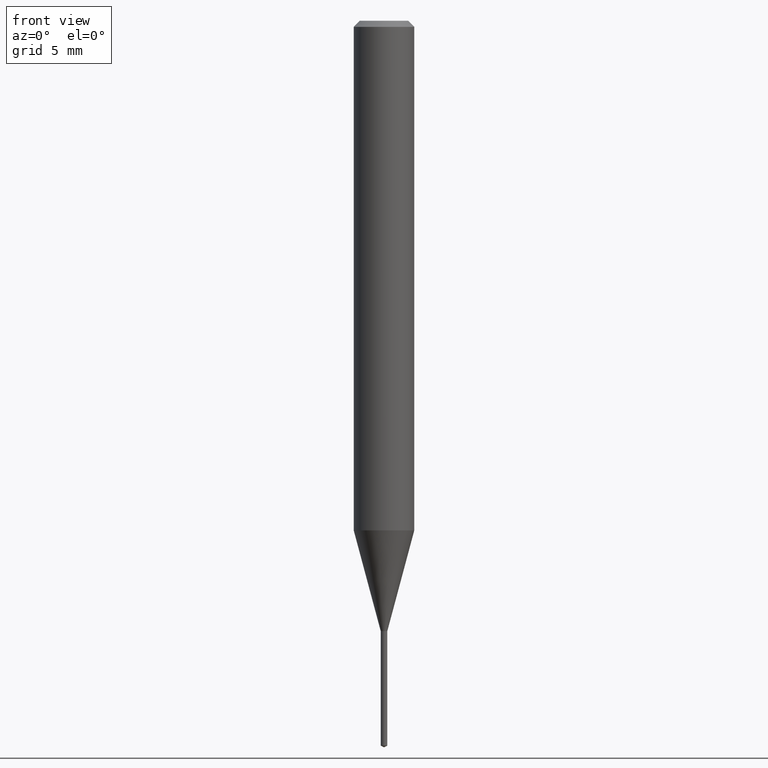
[diagram: clean part render]
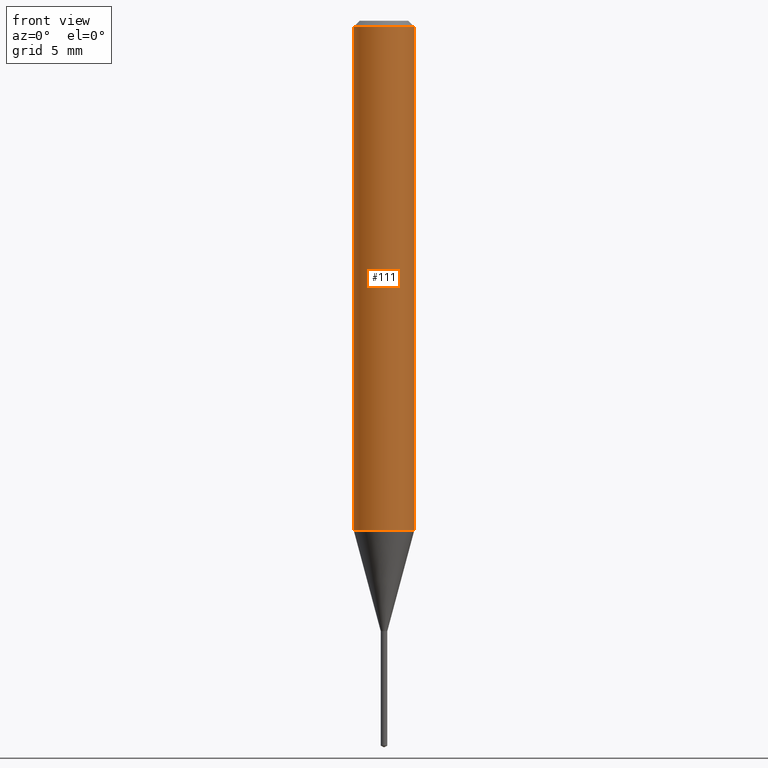
[diagram: same view with one face highlighted and labeled with its STEP entity id]
A machine part, front view. The second image highlights one B-rep face of the part: STEP entity #111.
In plain terms, the highlighted cylindrical surface (edge-blend (fillet) strip) has radius 1.5875 mm, axis along (-0, 0, 1).
Its self-contained STEP definition (entity closure, byte-faithful):
#5 = CARTESIAN_POINT ( 'NONE',  ( 2.573460162125579230E-29, -3.674219073901972026E-15, -1.052338167478040765 ) ) ;
#20 = VERTEX_POINT ( 'NONE', #104 ) ;
#38 = VERTEX_POINT ( 'NONE', #49 ) ;
#43 = CIRCLE ( 'NONE', #353, 0.06250000000000013878 ) ;
#44 = CARTESIAN_POINT ( 'NONE',  ( 0.000000000000000000, 0.000000000000000000, 0.000000000000000000 ) ) ;
#47 = EDGE_CURVE ( 'NONE', #175, #38, #115, .T. ) ;
#49 = CARTESIAN_POINT ( 'NONE',  ( 0.06250000000000000000, -4.800786840909313294E-16, -0.01250000000000008396 ) ) ;
#104 = CARTESIAN_POINT ( 'NONE',  ( -0.06250000000000013878, -3.230129864051909015E-15, -1.052338167478040765 ) ) ;
#111 = ADVANCED_FACE ( 'NONE', ( #227 ), #386, .T. ) ;
#115 = LINE ( 'NONE', #423, #208 ) ;
#151 = DIRECTION ( 'NONE',  ( 1.000000000000000000, -6.982962677686262766E-15, 0.000000000000000000 ) ) ;
#154 = AXIS2_PLACEMENT_3D ( 'NONE', #44, #388, #458 ) ;
#160 = DIRECTION ( 'NONE',  ( -2.445468806185136597E-29, 3.491481338843145583E-15, 1.000000000000000000 ) ) ;
#162 = EDGE_CURVE ( 'NONE', #20, #301, #454, .T. ) ;
#168 = CIRCLE ( 'NONE', #338, 0.06250000000000000000 ) ;
#175 = VERTEX_POINT ( 'NONE', #310 ) ;
#187 = ORIENTED_EDGE ( 'NONE', *, *, #162, .F. ) ;
#208 = VECTOR ( 'NONE', #463, 39.37007874015748143 ) ;
#216 = EDGE_CURVE ( 'NONE', #301, #38, #168, .T. ) ;
#227 = FACE_OUTER_BOUND ( 'NONE', #258, .T. ) ;
#244 = CARTESIAN_POINT ( 'NONE',  ( -0.06250000000000000000, -1.414842085468692191E-15, -0.01250000000000008396 ) ) ;
#258 = EDGE_LOOP ( 'NONE', ( #187, #261, #299, #481 ) ) ;
#261 = ORIENTED_EDGE ( 'NONE', *, *, #450, .T. ) ;
#299 = ORIENTED_EDGE ( 'NONE', *, *, #47, .T. ) ;
#301 = VERTEX_POINT ( 'NONE', #244 ) ;
#306 = DIRECTION ( 'NONE',  ( -2.445468806185136877E-29, 3.491481338843145188E-15, 1.000000000000000000 ) ) ;
#310 = CARTESIAN_POINT ( 'NONE',  ( 0.06250000000000013878, -4.110654241257365273E-15, -1.052338167478040765 ) ) ;
#319 = VECTOR ( 'NONE', #306, 39.37007874015748143 ) ;
#326 = DIRECTION ( 'NONE',  ( 1.000000000000000000, -6.982962677686266711E-15, 0.000000000000000000 ) ) ;
#338 = AXIS2_PLACEMENT_3D ( 'NONE', #399, #474, #326 ) ;
#343 = CARTESIAN_POINT ( 'NONE',  ( -0.06250000000000006939, 4.440892098500631092E-16, -3.074334431409319267E-30 ) ) ;
#353 = AXIS2_PLACEMENT_3D ( 'NONE', #5, #160, #151 ) ;
#386 = CYLINDRICAL_SURFACE ( 'NONE', #154, 0.06250000000000006939 ) ;
#388 = DIRECTION ( 'NONE',  ( -2.445468806185136597E-29, 3.491481338843145583E-15, 1.000000000000000000 ) ) ;
#399 = CARTESIAN_POINT ( 'NONE',  ( 3.056836007731441415E-31, -4.364351673553961684E-17, -0.01250000000000008396 ) ) ;
#423 = CARTESIAN_POINT ( 'NONE',  ( 0.06250000000000006939, -4.364351673553921624E-16, 3.047610484872463374E-30 ) ) ;
#450 = EDGE_CURVE ( 'NONE', #20, #175, #43, .T. ) ;
#454 = LINE ( 'NONE', #343, #319 ) ;
#458 = DIRECTION ( 'NONE',  ( 1.000000000000000000, -6.982962677686266711E-15, 4.876176775795935793E-29 ) ) ;
#463 = DIRECTION ( 'NONE',  ( -2.445468806185136877E-29, 3.491481338843145188E-15, 1.000000000000000000 ) ) ;
#474 = DIRECTION ( 'NONE',  ( -2.445468806185136597E-29, 3.491481338843145583E-15, 1.000000000000000000 ) ) ;
#481 = ORIENTED_EDGE ( 'NONE', *, *, #216, .F. ) ;